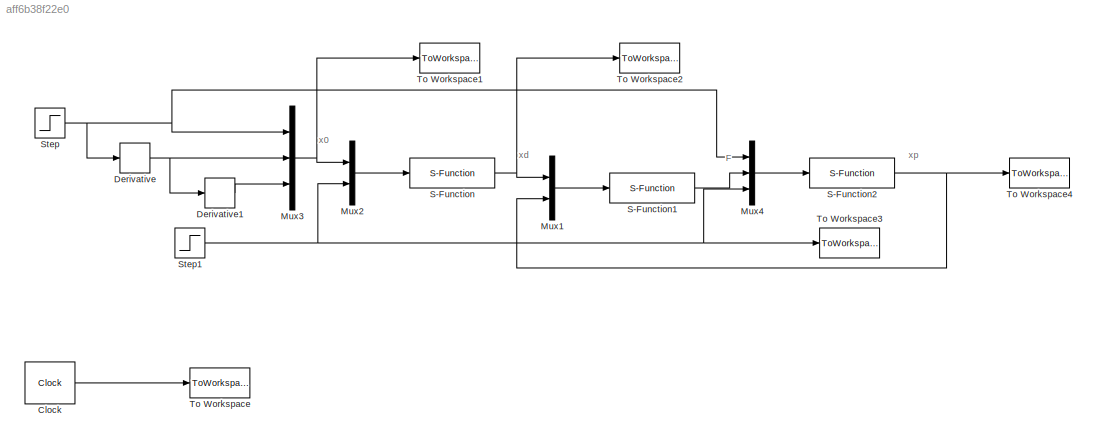
MODEL slx_aff6b38f22e0
KIND model
CONFIG AbsTol = auto
CONFIG EnableMultiTasking = on
CONFIG FixedStep = auto
CONFIG MaxStep = auto
CONFIG MinStep = auto
CONFIG RelTol = 1e-3
CONFIG SampleTimeConstraint = Unconstrained
CONFIG Solver = VariableStepAuto
CONFIG SolverName = VariableStepAuto
CONFIG StartTime = 0.0
CONFIG StopTime = 100
BLOCK [Clock] Clock
  Decimation = 50
  DisplayTime = on
BLOCK [Derivative] Derivative
BLOCK [Derivative] Derivative1
BLOCK [Mux] Mux1
  DisplayOption = bar
  Inputs = 2
  Ports = [2, 1]
BLOCK [Mux] Mux2
  DisplayOption = bar
  Inputs = 2
  Ports = [2, 1]
BLOCK [Mux] Mux3
  DisplayOption = bar
  Inputs = 3
  Ports = [3, 1]
BLOCK [Mux] Mux4
  DisplayOption = bar
  Inputs = 3
  Ports = [3, 1]
BLOCK [S-Function] S-Function
  EnableBusSupport = off
  FunctionName = admittance_ctrl
  Ports = [1, 1]
  SFcnIsStateOwnerBlock = off
  SFunctionDeploymentMode = off
BLOCK [S-Function] S-Function1
  EnableBusSupport = off
  FunctionName = position_ctrl
  Ports = [1, 1]
  SFcnIsStateOwnerBlock = off
  SFunctionDeploymentMode = off
BLOCK [S-Function] S-Function2
  EnableBusSupport = off
  FunctionName = plant_dynamics
  Ports = [1, 1]
  SFcnIsStateOwnerBlock = off
  SFunctionDeploymentMode = off
BLOCK [Step] Step
  SampleTime = 0.001
  Time = -0.5
BLOCK [Step] Step1
  After = 0
  Before = 10
  SampleTime = 0
  Time = 50
BLOCK [ToWorkspace] To Workspace
  MaxDataPoints = inf
  Ports = [1]
  SampleTime = -1
  VariableName = t
BLOCK [ToWorkspace] To Workspace1
  MaxDataPoints = inf
  Ports = [1]
  SampleTime = -1
  VariableName = x0
BLOCK [ToWorkspace] To Workspace2
  MaxDataPoints = inf
  Ports = [1]
  SampleTime = -1
  VariableName = xd
BLOCK [ToWorkspace] To Workspace3
  MaxDataPoints = inf
  Ports = [1]
  SampleTime = -1
  VariableName = F
BLOCK [ToWorkspace] To Workspace4
  MaxDataPoints = inf
  Ports = [1]
  SampleTime = -1
  VariableName = xp
ANNOTATION (root): x0
ANNOTATION (root): F
ANNOTATION (root): xd
ANNOTATION (root): xp
LINE Clock:1 -> To Workspace:1
LINE Derivative1:1 -> Mux3:3
NET Derivative:1 -> Derivative1:1, Mux3:2
LINE Mux1:1 -> S-Function1:1
LINE Mux2:1 -> S-Function:1
NET Mux3:1 -> Mux2:1, To Workspace1:1
LINE Mux4:1 -> S-Function2:1
LINE S-Function1:1 -> Mux4:2
NET S-Function2:1 -> Mux1:2, To Workspace4:1
NET S-Function:1 -> Mux1:1, To Workspace2:1
NET Step1:1 -> Mux2:2, Mux4:3, To Workspace3:1
NET Step:1 -> Derivative:1, Mux3:1, Mux4:1
note: NET lines group one-source signal fan-out (src -> all destinations, sorted); 1:1 wires keep LINE
